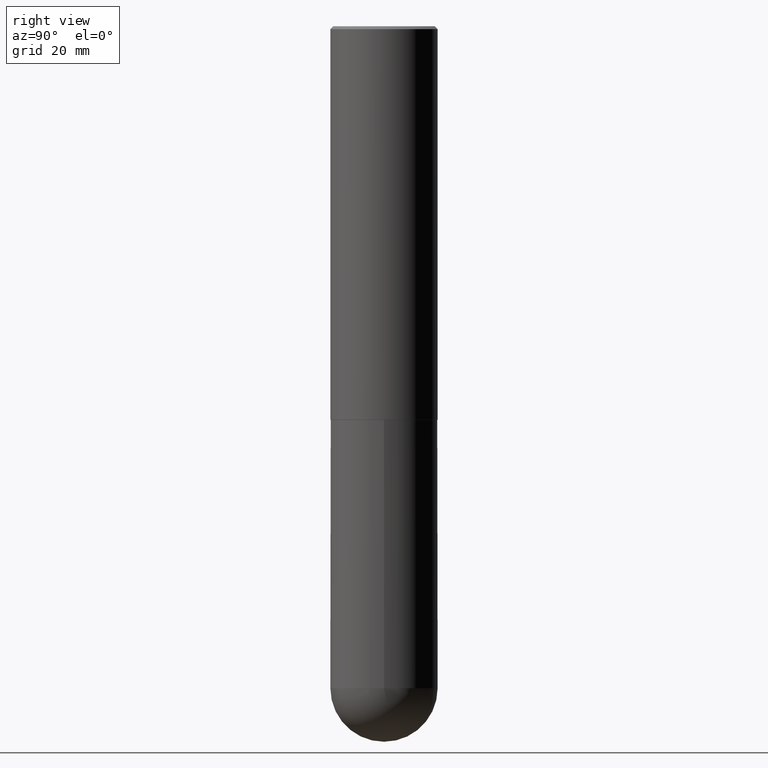
[diagram: clean part render]
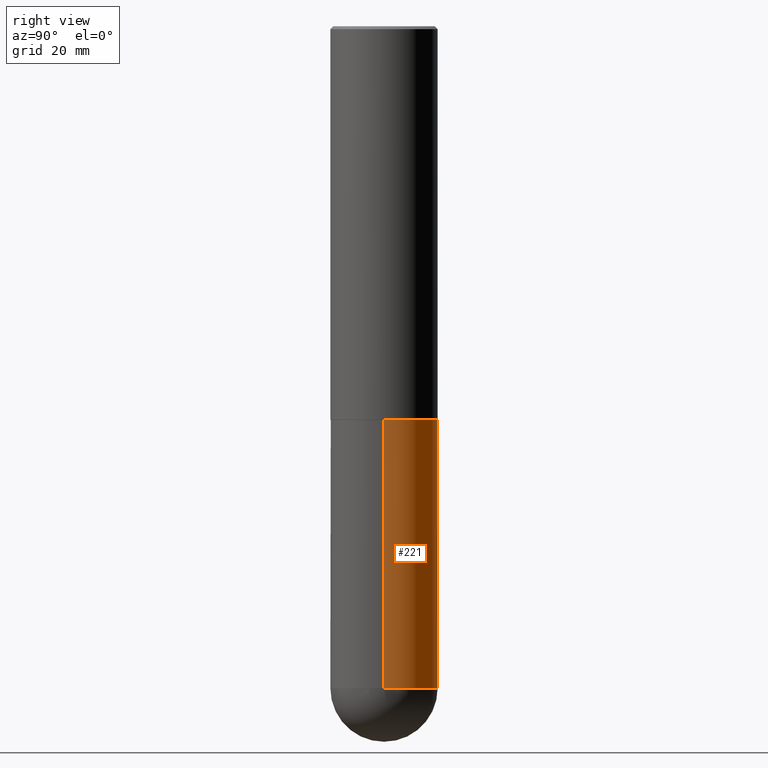
[diagram: same view with one face highlighted and labeled with its STEP entity id]
A machine part, right view. The second image highlights one B-rep face of the part: STEP entity #221.
In plain terms, the highlighted cylindrical surface (partial cylindrical patch) has radius 9.525 mm, axis along (-0, 0, 1).
Its self-contained STEP definition (entity closure, byte-faithful):
#4 = VERTEX_POINT ( 'NONE', #304 ) ;
#7 = AXIS2_PLACEMENT_3D ( 'NONE', #391, #285, #170 ) ;
#10 = DIRECTION ( 'NONE',  ( -2.445468806185136877E-29, 3.491481338843145188E-15, 1.000000000000000000 ) ) ;
#17 = CARTESIAN_POINT ( 'NONE',  ( 6.725039217009124520E-29, -9.601573681818649859E-15, -2.750000000000000000 ) ) ;
#24 = DIRECTION ( 'NONE',  ( 1.000000000000000000, -6.982962677686265922E-15, 4.876176775795935793E-29 ) ) ;
#52 = ORIENTED_EDGE ( 'NONE', *, *, #311, .F. ) ;
#69 = AXIS2_PLACEMENT_3D ( 'NONE', #388, #250, #318 ) ;
#80 = LINE ( 'NONE', #177, #101 ) ;
#82 = DIRECTION ( 'NONE',  ( -2.445468806185136597E-29, 3.491481338843145583E-15, 1.000000000000000000 ) ) ;
#86 = CIRCLE ( 'NONE', #69, 0.3750000000000001110 ) ;
#90 = ORIENTED_EDGE ( 'NONE', *, *, #162, .T. ) ;
#101 = VECTOR ( 'NONE', #141, 39.37007874015748143 ) ;
#103 = CARTESIAN_POINT ( 'NONE',  ( 2.618611004132463218E-15, 0.3749999999999838463, -4.625000000000000888 ) ) ;
#108 = VERTEX_POINT ( 'NONE', #401 ) ;
#114 = ORIENTED_EDGE ( 'NONE', *, *, #193, .T. ) ;
#116 = DIRECTION ( 'NONE',  ( 1.000000000000000000, -6.982962677686266711E-15, 0.000000000000000000 ) ) ;
#141 = DIRECTION ( 'NONE',  ( -2.445468806185136877E-29, 3.491481338843145188E-15, 1.000000000000000000 ) ) ;
#144 = EDGE_CURVE ( 'NONE', #4, #108, #247, .T. ) ;
#148 = ORIENTED_EDGE ( 'NONE', *, *, #144, .F. ) ;
#162 = EDGE_CURVE ( 'NONE', #232, #108, #80, .T. ) ;
#164 = CARTESIAN_POINT ( 'NONE',  ( 0.3750000000000001110, -2.618611004132350411E-15, 1.828566290923476483E-29 ) ) ;
#170 = DIRECTION ( 'NONE',  ( 1.000000000000000000, -6.982962677686270655E-15, 0.000000000000000000 ) ) ;
#173 = VERTEX_POINT ( 'NONE', #265 ) ;
#177 = CARTESIAN_POINT ( 'NONE',  ( -0.3750000000000001110, 2.664535259100376486E-15, -1.844600658845590159E-29 ) ) ;
#193 = EDGE_CURVE ( 'NONE', #372, #232, #86, .T. ) ;
#221 = ADVANCED_FACE ( 'NONE', ( #260 ), #406, .T. ) ;
#232 = VERTEX_POINT ( 'NONE', #383 ) ;
#247 = CIRCLE ( 'NONE', #276, 0.3750000000000000555 ) ;
#250 = DIRECTION ( 'NONE',  ( -2.445468806185136597E-29, 3.491481338843145583E-15, 1.000000000000000000 ) ) ;
#260 = FACE_OUTER_BOUND ( 'NONE', #329, .T. ) ;
#265 = CARTESIAN_POINT ( 'NONE',  ( 0.3750000000000001110, -1.549344844111645238E-14, -4.625000000000000000 ) ) ;
#270 = LINE ( 'NONE', #164, #343 ) ;
#276 = AXIS2_PLACEMENT_3D ( 'NONE', #17, #379, #116 ) ;
#285 = DIRECTION ( 'NONE',  ( -2.445468806185136597E-29, 3.491481338843145583E-15, 1.000000000000000000 ) ) ;
#304 = CARTESIAN_POINT ( 'NONE',  ( 0.3750000000000000555, -1.222018468595100145E-14, -2.750000000000000000 ) ) ;
#311 = EDGE_CURVE ( 'NONE', #173, #4, #270, .T. ) ;
#318 = DIRECTION ( 'NONE',  ( 1.000000000000000000, -6.982962677686270655E-15, 0.000000000000000000 ) ) ;
#329 = EDGE_LOOP ( 'NONE', ( #114, #90, #148, #52, #409 ) ) ;
#337 = EDGE_CURVE ( 'NONE', #173, #372, #386, .T. ) ;
#343 = VECTOR ( 'NONE', #10, 39.37007874015748143 ) ;
#365 = AXIS2_PLACEMENT_3D ( 'NONE', #371, #82, #24 ) ;
#371 = CARTESIAN_POINT ( 'NONE',  ( 0.000000000000000000, 0.000000000000000000, 0.000000000000000000 ) ) ;
#372 = VERTEX_POINT ( 'NONE', #103 ) ;
#379 = DIRECTION ( 'NONE',  ( -2.445468806185136597E-29, 3.491481338843145583E-15, 1.000000000000000000 ) ) ;
#383 = CARTESIAN_POINT ( 'NONE',  ( -0.3750000000000001110, -1.021030217788372352E-14, -4.625000000000000000 ) ) ;
#386 = CIRCLE ( 'NONE', #7, 0.3750000000000001110 ) ;
#388 = CARTESIAN_POINT ( 'NONE',  ( 1.131029322860625676E-28, -1.614810119214955014E-14, -4.625000000000000000 ) ) ;
#391 = CARTESIAN_POINT ( 'NONE',  ( 1.131029322860625676E-28, -1.614810119214955014E-14, -4.625000000000000000 ) ) ;
#401 = CARTESIAN_POINT ( 'NONE',  ( -0.3750000000000000555, -1.021030217788372194E-14, -2.750000000000000000 ) ) ;
#406 = CYLINDRICAL_SURFACE ( 'NONE', #365, 0.3750000000000001110 ) ;
#409 = ORIENTED_EDGE ( 'NONE', *, *, #337, .T. ) ;